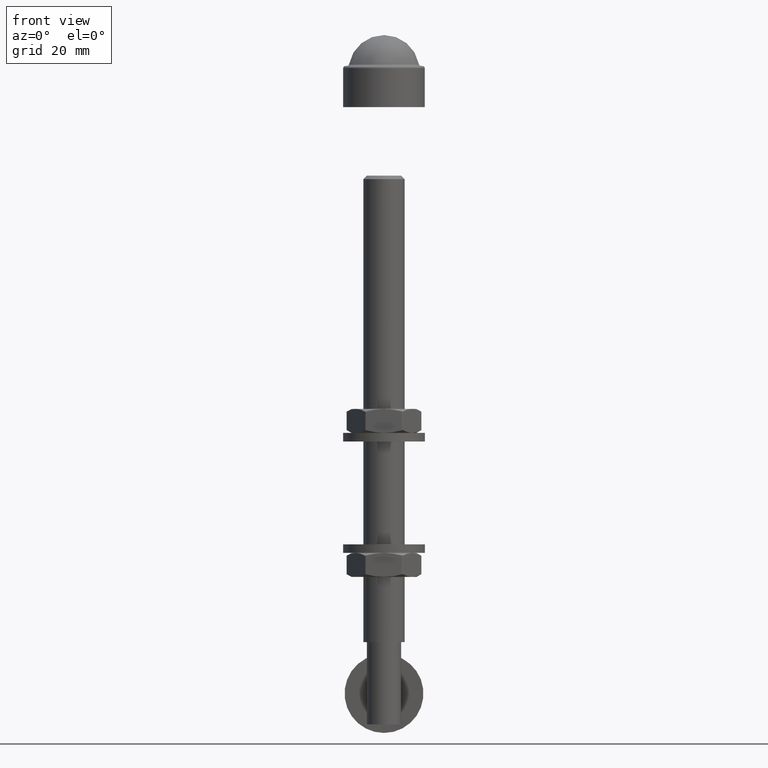
[diagram: clean part render]
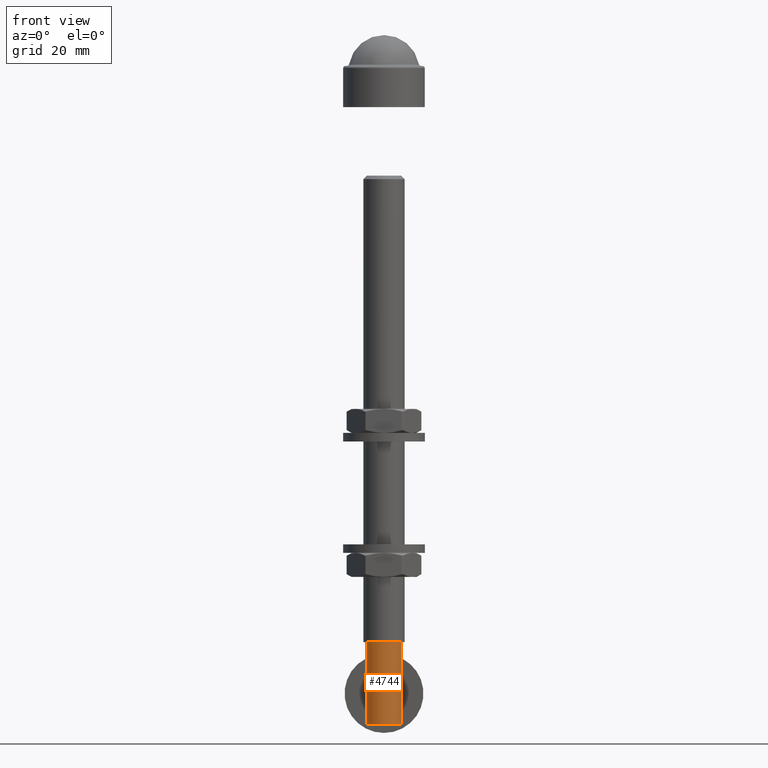
[diagram: same view with one face highlighted and labeled with its STEP entity id]
A machine part, front view. The second image highlights one B-rep face of the part: STEP entity #4744.
In plain terms, the highlighted cylindrical surface (bore or boss wall) has radius 5 mm, axis along (-0, -0, -1).
Its self-contained STEP definition (entity closure, byte-faithful):
#182 = CARTESIAN_POINT ( 'NONE',  ( -3.022601391075807165, 3.988575246927203999, -73.63160538378731701 ) ) ;
#276 = CARTESIAN_POINT ( 'NONE',  ( 1.095867937108754075, 4.880239697285584377, -74.84933726712012003 ) ) ;
#335 = CARTESIAN_POINT ( 'NONE',  ( 2.682431882870524920, 4.224951515485812159, -73.97780986116434576 ) ) ;
#377 = CARTESIAN_POINT ( 'NONE',  ( 2.048166462903640461, 4.567432760022366089, -67.55457284261321149 ) ) ;
#429 = CARTESIAN_POINT ( 'NONE',  ( 0.2541505363871354173, 5.001144851135919112, -66.99856892841212641 ) ) ;
#480 = CARTESIAN_POINT ( 'NONE',  ( -2.686395811168755365, 4.222396038100704629, -68.02582280580972451 ) ) ;
#561 = FACE_BOUND ( 'NONE', #7617, .T. ) ;
#1076 = VERTEX_POINT ( 'NONE', #4498 ) ;
#1126 = AXIS2_PLACEMENT_3D ( 'NONE', #7645, #4995, #6257 ) ;
#1352 = CARTESIAN_POINT ( 'NONE',  ( -1.087361570874526562, 4.887831675486085992, -74.85902273459970502 ) ) ;
#1505 = CARTESIAN_POINT ( 'NONE',  ( 3.945059660310360261, 3.072205090824088991, -71.67445645500637852 ) ) ;
#1556 = CARTESIAN_POINT ( 'NONE',  ( 1.897353801849632760E-16, 4.999999999999984013, -75.00000000000002842 ) ) ;
#1607 = CARTESIAN_POINT ( 'NONE',  ( -3.962611752038271540, 3.049310890434551613, -71.56287425722200624 ) ) ;
#1662 = CARTESIAN_POINT ( 'NONE',  ( 3.966074479458062463, 3.044794308477225098, -71.53777180287073634 ) ) ;
#1711 = CARTESIAN_POINT ( 'NONE',  ( -3.191881859894243334, 3.852994989080986699, -68.57659654983018527 ) ) ;
#2033 = DIRECTION ( 'NONE',  ( -1.000000000000000000, 0.000000000000000000, 0.000000000000000000 ) ) ;
#2224 = VERTEX_POINT ( 'NONE', #5661 ) ;
#2633 = CARTESIAN_POINT ( 'NONE',  ( -1.833377537662953083, 4.658763893334807449, -74.56489871654150647 ) ) ;
#2684 = CARTESIAN_POINT ( 'NONE',  ( 3.883711217025731077, 3.149417989363428205, -70.03304319561190994 ) ) ;
#2731 = CARTESIAN_POINT ( 'NONE',  ( -3.999652792629481368, 3.000462939435895038, -71.14788157663346624 ) ) ;
#2783 = CARTESIAN_POINT ( 'NONE',  ( 3.463706379511257261, 3.610638135659143266, -73.01596383844125171 ) ) ;
#2818 = EDGE_LOOP ( 'NONE', ( #6021 ) ) ;
#2833 = CARTESIAN_POINT ( 'NONE',  ( 3.961768982765090819, 3.050407850649884178, -70.43134981000785899 ) ) ;
#2881 = CARTESIAN_POINT ( 'NONE',  ( -3.465755827058817129, 3.608630867879532911, -68.98765543779781240 ) ) ;
#2909 = DIRECTION ( 'NONE',  ( -0.000000000000000000, -0.000000000000000000, -1.000000000000000000 ) ) ;
#3076 = CARTESIAN_POINT ( 'NONE',  ( -5.000000000000000000, -1.836970198721030062E-14, -80.00000000000000000 ) ) ;
#3213 = ORIENTED_EDGE ( 'NONE', *, *, #13333, .F. ) ;
#3640 = FACE_OUTER_BOUND ( 'NONE', #2818, .T. ) ;
#3840 = FACE_OUTER_BOUND ( 'NONE', #8134, .T. ) ;
#3927 = CARTESIAN_POINT ( 'NONE',  ( -4.000323634996627575, 2.999568490267300991, -70.87153896472565862 ) ) ;
#3983 = CARTESIAN_POINT ( 'NONE',  ( -3.784648076143625417, 3.270832994395398874, -69.67995163216271237 ) ) ;
#4038 = CARTESIAN_POINT ( 'NONE',  ( 3.723915867085813236, 3.337347679131404288, -69.53424075805796178 ) ) ;
#4090 = CARTESIAN_POINT ( 'NONE',  ( 3.862961011278551737, 3.175734812498721915, -72.07288450346398179 ) ) ;
#4144 = CARTESIAN_POINT ( 'NONE',  ( 1.820957128837902284, 4.663783085230694070, -67.42854549081293669 ) ) ;
#4259 = CARTESIAN_POINT ( 'NONE',  ( 0.000000000000000000, -1.836970198721030062E-14, -80.00000000000000000 ) ) ;
#4320 = AXIS2_PLACEMENT_3D ( 'NONE', #6844, #2909, #11533 ) ;
#4498 = CARTESIAN_POINT ( 'NONE',  ( 0.000000000000000000, 4.999999999999983125, -75.00000000000001421 ) ) ;
#4672 = ORIENTED_EDGE ( 'NONE', *, *, #11011, .F. ) ;
#4744 = ADVANCED_FACE ( 'NONE', ( #561, #3640, #3840 ), #5567, .T. ) ;
#4914 = CARTESIAN_POINT ( 'NONE',  ( -3.776444225367821428, 3.280274509822600493, -72.34267958521833464 ) ) ;
#4995 = DIRECTION ( 'NONE',  ( -0.000000000000000000, -0.000000000000000000, -1.000000000000000000 ) ) ;
#5071 = CARTESIAN_POINT ( 'NONE',  ( -2.483673537840930479, 4.345944661879880933, -74.14592256248251090 ) ) ;
#5124 = CARTESIAN_POINT ( 'NONE',  ( 1.897353801849632760E-16, 4.999999999999984013, -75.00000000000002842 ) ) ;
#5186 = CARTESIAN_POINT ( 'NONE',  ( -3.992021358842381407, 3.010706607170619886, -71.28789719932868252 ) ) ;
#5235 = CARTESIAN_POINT ( 'NONE',  ( 4.000465286172456558, 2.999379629320206853, -71.12562019411383574 ) ) ;
#5283 = CARTESIAN_POINT ( 'NONE',  ( 2.666604414451646310, 4.234923798123352512, -68.00814070320889471 ) ) ;
#5337 = CARTESIAN_POINT ( 'NONE',  ( -0.2970494910859280413, 4.993069614654565669, -67.00865615366302563 ) ) ;
#5384 = CARTESIAN_POINT ( 'NONE',  ( -3.035691578065150331, 3.978684129168573058, -68.38331716106617364 ) ) ;
#5558 = CIRCLE ( 'NONE', #1126, 5.000000000000000888 ) ;
#5567 = CYLINDRICAL_SURFACE ( 'NONE', #8734, 5.000000000000000888 ) ;
#5661 = CARTESIAN_POINT ( 'NONE',  ( -5.000000000000000888, -1.836970198721030062E-14, -56.00000000000000000 ) ) ;
#6021 = ORIENTED_EDGE ( 'NONE', *, *, #7245, .T. ) ;
#6133 = CARTESIAN_POINT ( 'NONE',  ( -3.857835620733245818, 3.181989532056633152, -72.09041187669322426 ) ) ;
#6257 = DIRECTION ( 'NONE',  ( -1.000000000000000000, 0.000000000000000000, 0.000000000000000000 ) ) ;
#6344 = CARTESIAN_POINT ( 'NONE',  ( -3.457629301634346231, 3.616491245582050151, -73.02638681813392907 ) ) ;
#6398 = CARTESIAN_POINT ( 'NONE',  ( 3.454395162862852420, 3.619649294036353826, -68.96794216171545600 ) ) ;
#6452 = CARTESIAN_POINT ( 'NONE',  ( -3.584532075349552649, 3.488988297239389968, -69.20633934244020224 ) ) ;
#6507 = CARTESIAN_POINT ( 'NONE',  ( -0.7094843923667266683, 4.951277336645978799, -67.06103344216465700 ) ) ;
#6555 = CARTESIAN_POINT ( 'NONE',  ( 2.471953319980054520, 4.352685913424990005, -67.84478195040955484 ) ) ;
#6608 = CARTESIAN_POINT ( 'NONE',  ( 2.071721836711494458, 4.556627672645061189, -74.43108844372675037 ) ) ;
#6844 = CARTESIAN_POINT ( 'NONE',  ( 0.000000000000000000, -1.836970198721030062E-14, -80.00000000000000000 ) ) ;
#7245 = EDGE_CURVE ( 'NONE', #2224, #2224, #5558, .T. ) ;
#7355 = CARTESIAN_POINT ( 'NONE',  ( -3.941099111867877980, 3.077292000300460906, -71.69692985643622762 ) ) ;
#7511 = CARTESIAN_POINT ( 'NONE',  ( -2.062618871635508722, 4.560863146057613449, -74.43672320707983658 ) ) ;
#7617 = EDGE_LOOP ( 'NONE', ( #3213 ) ) ;
#7623 = CARTESIAN_POINT ( 'NONE',  ( -1.366819891760896688, 4.816412187371435394, -67.23138991751812910 ) ) ;
#7645 = CARTESIAN_POINT ( 'NONE',  ( 0.000000000000000000, -1.836970198721030062E-14, -56.00000000000000000 ) ) ;
#7676 = CARTESIAN_POINT ( 'NONE',  ( 3.584473990407082145, 3.489037882483463804, -72.79370821041200657 ) ) ;
#7729 = CARTESIAN_POINT ( 'NONE',  ( 0.5350200239718461148, 4.978709775308512775, -67.02650442455620805 ) ) ;
#7779 = CARTESIAN_POINT ( 'NONE',  ( -1.111845738712443410, 4.882403150385249191, -67.14784454618774134 ) ) ;
#7831 = CARTESIAN_POINT ( 'NONE',  ( 1.353597233068174477, 4.815126225674178251, -74.76644374207988619 ) ) ;
#8134 = EDGE_LOOP ( 'NONE', ( #4672 ) ) ;
#8725 = CARTESIAN_POINT ( 'NONE',  ( -0.5533891418995969813, 4.976646876294060995, -74.97091577719795907 ) ) ;
#8734 = AXIS2_PLACEMENT_3D ( 'NONE', #4259, #14108, #2033 ) ;
#8884 = CARTESIAN_POINT ( 'NONE',  ( 0.9644912504006253329, 4.907975660079616276, -74.88439500920483738 ) ) ;
#8932 = CARTESIAN_POINT ( 'NONE',  ( -3.965773646679056519, 3.045187097233191587, -70.46000317952515957 ) ) ;
#8985 = CARTESIAN_POINT ( 'NONE',  ( -2.080853731078405655, 4.552426729890346913, -67.57448638054420087 ) ) ;
#9031 = CARTESIAN_POINT ( 'NONE',  ( 3.993659475799190783, 3.008521754766477763, -71.26387360597581733 ) ) ;
#9082 = CARTESIAN_POINT ( 'NONE',  ( -1.853345313763053115, 4.650928307674274009, -67.44532283909634884 ) ) ;
#10018 = CARTESIAN_POINT ( 'NONE',  ( -1.348663838197514453, 4.821458291947108066, -74.77503402717711367 ) ) ;
#10122 = CARTESIAN_POINT ( 'NONE',  ( 0.5624582712672655527, 4.975692364004913770, -74.96972449064442401 ) ) ;
#10173 = CARTESIAN_POINT ( 'NONE',  ( 3.991503424591321014, 3.011395347605784423, -70.70525108506831202 ) ) ;
#10225 = CARTESIAN_POINT ( 'NONE',  ( 3.017066726457469095, 3.992826949316456542, -68.36194967389334920 ) ) ;
#10276 = CARTESIAN_POINT ( 'NONE',  ( -3.863110423718084885, 3.175535089449109005, -69.92825223335576368 ) ) ;
#11011 = EDGE_CURVE ( 'NONE', #15715, #15715, #15930, .T. ) ;
#11291 = CARTESIAN_POINT ( 'NONE',  ( 1.480803425727867495, 4.777429984658234652, -74.71819601079036488 ) ) ;
#11342 = CARTESIAN_POINT ( 'NONE',  ( 1.847103063937501011, 4.653458331932180947, -74.55798422037133832 ) ) ;
#11395 = CARTESIAN_POINT ( 'NONE',  ( -0.5715625573450903163, 4.969134614797857452, -67.03863907944662515 ) ) ;
#11452 = CARTESIAN_POINT ( 'NONE',  ( 3.999485490331466053, 3.000686001446997597, -70.84631606567977258 ) ) ;
#11505 = CARTESIAN_POINT ( 'NONE',  ( 3.784281875617056201, 3.271245912368225817, -72.32100477587343335 ) ) ;
#11533 = DIRECTION ( 'NONE',  ( -1.000000000000000000, 0.000000000000000000, 0.000000000000000000 ) ) ;
#12283 = CARTESIAN_POINT ( 'NONE',  ( -3.576624768815950262, 3.497068359383058933, -72.80888770214416184 ) ) ;
#12524 = CARTESIAN_POINT ( 'NONE',  ( -3.944611327128475065, 3.072776072288726290, -70.32316336300679893 ) ) ;
#12576 = CARTESIAN_POINT ( 'NONE',  ( 1.330540095233765596, 4.826636570752435240, -67.21835548587209530 ) ) ;
#12632 = CARTESIAN_POINT ( 'NONE',  ( -3.993518041697491583, 3.008710475350900193, -70.73397211902950232 ) ) ;
#12678 = CARTESIAN_POINT ( 'NONE',  ( 3.033097011011590460, 3.980700772004692300, -73.61975473990989371 ) ) ;
#12730 = CARTESIAN_POINT ( 'NONE',  ( 3.188478941668058120, 3.855849020472979394, -73.42795677883879080 ) ) ;
#13333 = EDGE_CURVE ( 'NONE', #1076, #1076, #14115, .T. ) ;
#13629 = CARTESIAN_POINT ( 'NONE',  ( -0.2801250237691151335, 4.999999999999984013, -75.00000000000001421 ) ) ;
#13673 = CARTESIAN_POINT ( 'NONE',  ( -2.674496834983358440, 4.229883964058330115, -73.98471652673683252 ) ) ;
#13725 = CARTESIAN_POINT ( 'NONE',  ( -3.180986173031980169, 3.862063733791992526, -73.43777991032965247 ) ) ;
#13783 = CARTESIAN_POINT ( 'NONE',  ( 3.848846284474757962, 3.192205546072348188, -69.90297772830145107 ) ) ;
#13840 = CARTESIAN_POINT ( 'NONE',  ( 0.2801250237691383926, 4.999999999999984013, -75.00000000000004263 ) ) ;
#13892 = CARTESIAN_POINT ( 'NONE',  ( 3.769040374828694695, 3.286050611722434400, -69.65411358613403081 ) ) ;
#13943 = CARTESIAN_POINT ( 'NONE',  ( 3.573842375211972566, 3.499915190870867221, -69.18570982502065192 ) ) ;
#13997 = CARTESIAN_POINT ( 'NONE',  ( 2.488720138866368004, 4.342943608455331450, -74.14176245884112859 ) ) ;
#14108 = DIRECTION ( 'NONE',  ( -0.000000000000000000, -0.000000000000000000, -1.000000000000000000 ) ) ;
#14115 = B_SPLINE_CURVE_WITH_KNOTS ( 'NONE', 3,
 ( #5124, #13629, #8725, #1352, #10018, #2633, #7511, #5071, #13673, #182, #13725, #6344, #12283, #4914, #6133, #7355, #1607, #5186, #2731, #3927, #12632, #8932, #12524, #10276, #3983, #6452, #2881, #1711, #5384, #480, #15071, #8985, #9082, #7623, #7779, #6507, #11395, #5337, #15180, #429, #7729, #15122, #12576, #4144, #377, #6555, #5283, #10225, #15227, #6398, #13943, #4038, #13892, #13783, #2684, #15023, #2833, #10173, #11452, #5235, #9031, #1662, #1505, #4090, #11505, #7676, #2783, #12730, #12678, #335, #13997, #6608, #11342, #11291, #7831, #276, #8884, #10122, #13840, #1556 ),
 .UNSPECIFIED., .T., .F.,
 ( 4, 2, 2, 2, 2, 2, 2, 2, 2, 2, 2, 2, 2, 2, 2, 2, 2, 2, 2, 2, 2, 2, 2, 2, 2, 2, 2, 2, 2, 2, 2, 2, 2, 2, 2, 2, 2, 2, 2, 4 ),
 ( 0.000000000000000000, 0.0008265088811608426378, 0.001653017762321685276, 0.002479526643482528672, 0.003306035524643371852, 0.004132544405804215032, 0.004959053286965059079, 0.005785562168125901392, 0.006198816608706343365, 0.006612071049286785338, 0.007025325489867227310, 0.007438579930447668416, 0.008265088811608549760, 0.009091597692769433706, 0.009918106573930315917, 0.01074461545509119813, 0.01157112433625208034, 0.01239763321741296255, 0.01281088765799340452, 0.01322414209857384650, 0.01405065097973473044, 0.01487715986089561265, 0.01570366874205649660, 0.01653017762321738054, 0.01735668650437826449, 0.01818319538553914844, 0.01859644982611957306, 0.01900970426669999769, 0.01942295870728042231, 0.01983621314786084694, 0.02024946758844127156, 0.02066272202902169619, 0.02148923091018258014, 0.02231573979134346755, 0.02314224867250435150, 0.02396875755366524238, 0.02479526643482612980, 0.02520852087540657871, 0.02562177531598702762, 0.02644828419714793932 ),
 .UNSPECIFIED. ) ;
#15023 = CARTESIAN_POINT ( 'NONE',  ( 3.940060286670555634, 3.078631421001706059, -70.29704678946214358 ) ) ;
#15071 = CARTESIAN_POINT ( 'NONE',  ( -2.496139557731669179, 4.338643646289726874, -67.86417744195448165 ) ) ;
#15122 = CARTESIAN_POINT ( 'NONE',  ( 1.071278671447105202, 4.891437361441512088, -67.13641675096491213 ) ) ;
#15180 = CARTESIAN_POINT ( 'NONE',  ( -0.1594821741996854669, 4.999357560268089529, -67.00080305372866007 ) ) ;
#15227 = CARTESIAN_POINT ( 'NONE',  ( 3.175457681581919545, 3.866674988347292174, -68.55488783246529749 ) ) ;
#15715 = VERTEX_POINT ( 'NONE', #3076 ) ;
#15930 = CIRCLE ( 'NONE', #4320, 5.000000000000000000 ) ;